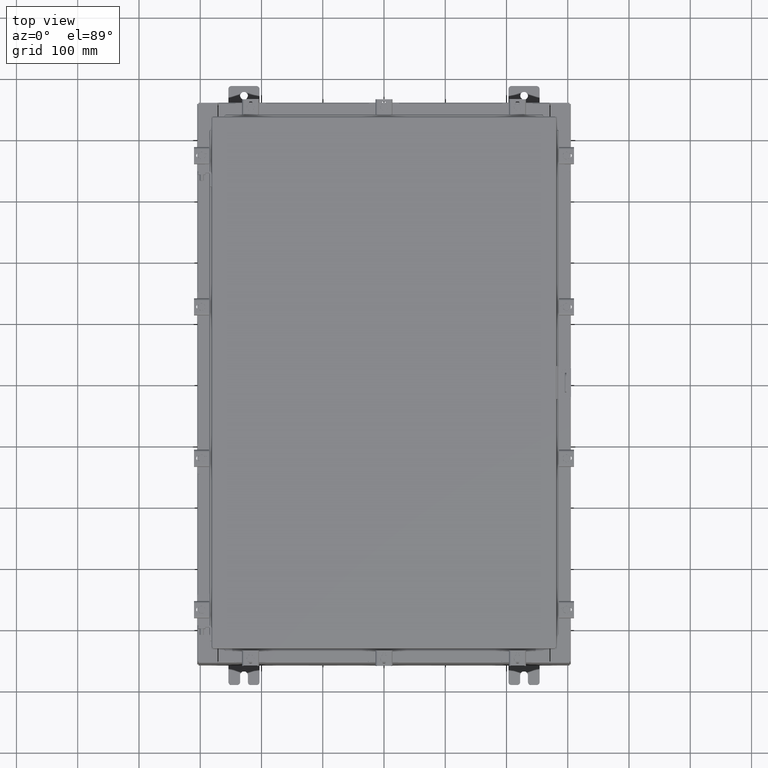
[diagram: clean part render]
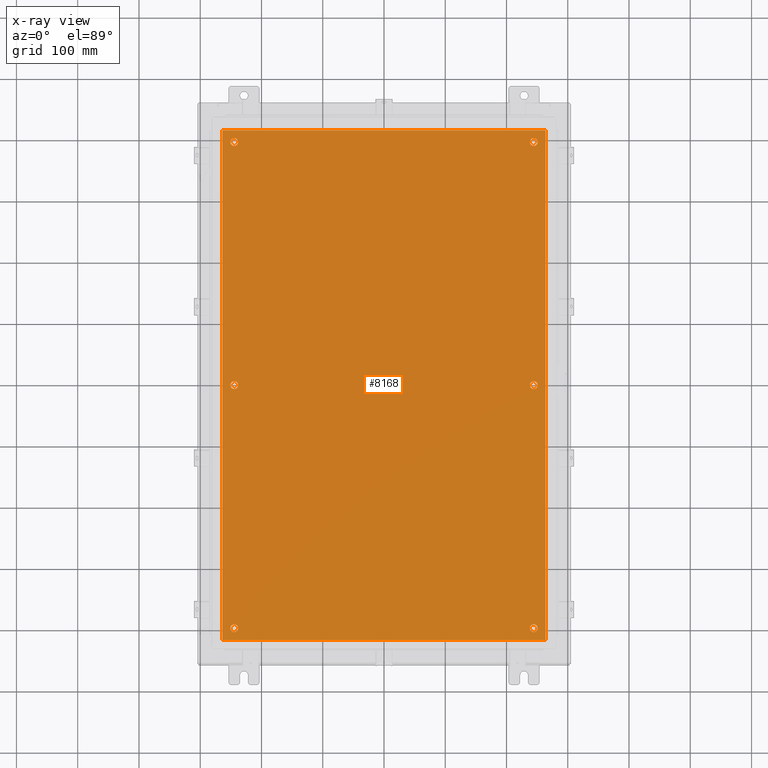
[diagram: x-ray — body ghosted, one internal face saturated and labeled with its STEP entity id]
A machine part, top view, then the same camera in x-ray: the body is ghosted and one INTERNAL B-rep face — a face not visible from any outside direction — is saturated and labeled: STEP entity #8168.
In plain terms, the highlighted planar face has unit normal (0, 0, -1).
Its self-contained STEP definition (entity closure, byte-faithful):
#156 = ORIENTED_EDGE ( 'NONE', *, *, #4316, .T. ) ;
#210 = CARTESIAN_POINT ( 'NONE',  ( 9.375000000000007100, 2.650915570591087300E-015, -0.1039999999999999800 ) ) ;
#275 = DIRECTION ( 'NONE',  ( -1.000000000000000000, 0.0000000000000000000, 0.0000000000000000000 ) ) ;
#322 = VERTEX_POINT ( 'NONE', #10211 ) ;
#494 = EDGE_LOOP ( 'NONE', ( #17899, #1867, #13667, #22196 ) ) ;
#1092 = LINE ( 'NONE', #8344, #19752 ) ;
#1322 = DIRECTION ( 'NONE',  ( -0.0000000000000000000, -0.0000000000000000000, 1.000000000000000000 ) ) ;
#1373 = DIRECTION ( 'NONE',  ( -0.0000000000000000000, -0.0000000000000000000, 1.000000000000000000 ) ) ;
#1379 = VERTEX_POINT ( 'NONE', #18771 ) ;
#1395 = CARTESIAN_POINT ( 'NONE',  ( 9.375000000000007100, 15.62500000000000200, -0.1039999999999999800 ) ) ;
#1676 = AXIS2_PLACEMENT_3D ( 'NONE', #3333, #16022, #5177 ) ;
#1867 = ORIENTED_EDGE ( 'NONE', *, *, #13534, .F. ) ;
#2170 = CARTESIAN_POINT ( 'NONE',  ( 9.375000000000007100, -15.62500000000000200, -0.1039999999999999800 ) ) ;
#2249 = VERTEX_POINT ( 'NONE', #8192 ) ;
#2430 = VERTEX_POINT ( 'NONE', #14110 ) ;
#2886 = DIRECTION ( 'NONE',  ( -0.0000000000000000000, -0.0000000000000000000, 1.000000000000000000 ) ) ;
#3333 = CARTESIAN_POINT ( 'NONE',  ( 9.625000000000007100, -15.62500000000000200, -0.1039999999999999800 ) ) ;
#3426 = CIRCLE ( 'NONE', #14259, 0.2499999999999998100 ) ;
#3500 = DIRECTION ( 'NONE',  ( -0.0000000000000000000, -0.0000000000000000000, 1.000000000000000000 ) ) ;
#3927 = CARTESIAN_POINT ( 'NONE',  ( -10.38300000000000100, -16.38299999999999600, -0.1040000000000009100 ) ) ;
#3953 = DIRECTION ( 'NONE',  ( 0.0000000000000000000, 0.0000000000000000000, -1.000000000000000000 ) ) ;
#3954 = EDGE_CURVE ( 'NONE', #10959, #22600, #12469, .T. ) ;
#3961 = VERTEX_POINT ( 'NONE', #6683 ) ;
#4088 = EDGE_LOOP ( 'NONE', ( #10362, #11519 ) ) ;
#4153 = FACE_BOUND ( 'NONE', #11224, .T. ) ;
#4229 = DIRECTION ( 'NONE',  ( -0.0000000000000000000, -0.0000000000000000000, 1.000000000000000000 ) ) ;
#4316 = EDGE_CURVE ( 'NONE', #15728, #5089, #15278, .T. ) ;
#4533 = CARTESIAN_POINT ( 'NONE',  ( -9.625000000000005300, 2.628543122537473900E-016, -0.1039999999999999800 ) ) ;
#4584 = CARTESIAN_POINT ( 'NONE',  ( 9.625000000000007100, 2.620299400612403500E-015, -0.1039999999999999800 ) ) ;
#4733 = FACE_BOUND ( 'NONE', #19204, .T. ) ;
#4913 = CARTESIAN_POINT ( 'NONE',  ( -10.50000000000000200, -16.38299999999999600, -0.1040000000000009100 ) ) ;
#5029 = CIRCLE ( 'NONE', #22622, 0.2499999999999998100 ) ;
#5044 = DIRECTION ( 'NONE',  ( -0.0000000000000000000, -0.0000000000000000000, 1.000000000000000000 ) ) ;
#5088 = DIRECTION ( 'NONE',  ( -0.0000000000000000000, -0.0000000000000000000, 1.000000000000000000 ) ) ;
#5089 = VERTEX_POINT ( 'NONE', #12742 ) ;
#5177 = DIRECTION ( 'NONE',  ( -1.000000000000000000, 0.0000000000000000000, 0.0000000000000000000 ) ) ;
#5191 = CIRCLE ( 'NONE', #14369, 0.2499999999999998100 ) ;
#5281 = EDGE_CURVE ( 'NONE', #11200, #322, #23216, .T. ) ;
#5332 = DIRECTION ( 'NONE',  ( 0.0000000000000000000, 1.000000000000000000, 0.0000000000000000000 ) ) ;
#5513 = AXIS2_PLACEMENT_3D ( 'NONE', #13744, #2886, #15577 ) ;
#5650 = CARTESIAN_POINT ( 'NONE',  ( -10.38300000000000100, 16.38300000000000300, -0.1039999999999987600 ) ) ;
#5959 = ORIENTED_EDGE ( 'NONE', *, *, #16565, .T. ) ;
#6203 = AXIS2_PLACEMENT_3D ( 'NONE', #6523, #19170, #8341 ) ;
#6348 = DIRECTION ( 'NONE',  ( -1.000000000000000000, 0.0000000000000000000, 0.0000000000000000000 ) ) ;
#6389 = DIRECTION ( 'NONE',  ( -1.000000000000000000, 0.0000000000000000000, 0.0000000000000000000 ) ) ;
#6523 = CARTESIAN_POINT ( 'NONE',  ( -9.625000000000007100, 15.62500000000000200, -0.1039999999999999800 ) ) ;
#6667 = CIRCLE ( 'NONE', #7827, 0.2499999999999998100 ) ;
#6683 = CARTESIAN_POINT ( 'NONE',  ( 9.875000000000007100, -15.62500000000000200, -0.1039999999999999800 ) ) ;
#6714 = DIRECTION ( 'NONE',  ( 1.000000000000000000, -0.0000000000000000000, -0.0000000000000000000 ) ) ;
#6863 = EDGE_CURVE ( 'NONE', #1379, #2430, #8189, .T. ) ;
#6935 = DIRECTION ( 'NONE',  ( 0.0000000000000000000, -1.000000000000000000, 0.0000000000000000000 ) ) ;
#7076 = VERTEX_POINT ( 'NONE', #2170 ) ;
#7827 = AXIS2_PLACEMENT_3D ( 'NONE', #4584, #17232, #6389 ) ;
#8168 = ADVANCED_FACE ( 'NONE', ( #22817, #18610, #4153, #4733, #18046, #13228, #8408 ), #13004, .T. ) ;
#8189 = CIRCLE ( 'NONE', #10528, 0.2500000000000008900 ) ;
#8192 = CARTESIAN_POINT ( 'NONE',  ( 10.38300000000000100, 16.38300000000000300, -0.1040000000000009100 ) ) ;
#8341 = DIRECTION ( 'NONE',  ( -1.000000000000000000, 0.0000000000000000000, 0.0000000000000000000 ) ) ;
#8344 = CARTESIAN_POINT ( 'NONE',  ( 10.50000000000000400, 16.38299999999999900, -0.1040000000000009100 ) ) ;
#8408 = FACE_OUTER_BOUND ( 'NONE', #494, .T. ) ;
#9220 = CARTESIAN_POINT ( 'NONE',  ( 9.875000000000007100, 15.62500000000000200, -0.1039999999999999800 ) ) ;
#9419 = VERTEX_POINT ( 'NONE', #3927 ) ;
#9514 = EDGE_LOOP ( 'NONE', ( #14986, #13858 ) ) ;
#10015 = EDGE_LOOP ( 'NONE', ( #13950, #5959 ) ) ;
#10211 = CARTESIAN_POINT ( 'NONE',  ( -9.875000000000007100, 15.62500000000000200, -0.1039999999999999800 ) ) ;
#10294 = VERTEX_POINT ( 'NONE', #14717 ) ;
#10362 = ORIENTED_EDGE ( 'NONE', *, *, #5281, .T. ) ;
#10446 = ORIENTED_EDGE ( 'NONE', *, *, #12202, .T. ) ;
#10528 = AXIS2_PLACEMENT_3D ( 'NONE', #14358, #3500, #16185 ) ;
#10959 = VERTEX_POINT ( 'NONE', #9220 ) ;
#11089 = DIRECTION ( 'NONE',  ( -0.0000000000000000000, -0.0000000000000000000, 1.000000000000000000 ) ) ;
#11139 = LINE ( 'NONE', #17995, #20747 ) ;
#11200 = VERTEX_POINT ( 'NONE', #15243 ) ;
#11224 = EDGE_LOOP ( 'NONE', ( #14141, #14391 ) ) ;
#11395 = AXIS2_PLACEMENT_3D ( 'NONE', #12180, #1322, #13980 ) ;
#11519 = ORIENTED_EDGE ( 'NONE', *, *, #19022, .T. ) ;
#11587 = EDGE_CURVE ( 'NONE', #10294, #2249, #11139, .T. ) ;
#12167 = VECTOR ( 'NONE', #6935, 39.37007874015748100 ) ;
#12180 = CARTESIAN_POINT ( 'NONE',  ( 9.625000000000007100, 15.62500000000000200, -0.1039999999999999800 ) ) ;
#12202 = EDGE_CURVE ( 'NONE', #3961, #7076, #15382, .T. ) ;
#12240 = CARTESIAN_POINT ( 'NONE',  ( 9.625000000000007100, 2.620299400612403500E-015, -0.1039999999999999800 ) ) ;
#12469 = CIRCLE ( 'NONE', #11395, 0.2499999999999998100 ) ;
#12621 = EDGE_CURVE ( 'NONE', #5089, #15728, #22961, .T. ) ;
#12742 = CARTESIAN_POINT ( 'NONE',  ( -9.375000000000005300, 2.628543122537473900E-016, -0.1039999999999999800 ) ) ;
#13004 = PLANE ( 'NONE',  #20829 ) ;
#13228 = FACE_BOUND ( 'NONE', #4088, .T. ) ;
#13534 = EDGE_CURVE ( 'NONE', #14496, #9419, #21748, .T. ) ;
#13667 = ORIENTED_EDGE ( 'NONE', *, *, #15232, .F. ) ;
#13744 = CARTESIAN_POINT ( 'NONE',  ( -9.625000000000007100, 15.62500000000000200, -0.1039999999999999800 ) ) ;
#13858 = ORIENTED_EDGE ( 'NONE', *, *, #18552, .T. ) ;
#13950 = ORIENTED_EDGE ( 'NONE', *, *, #19723, .T. ) ;
#13977 = ORIENTED_EDGE ( 'NONE', *, *, #12621, .T. ) ;
#13980 = DIRECTION ( 'NONE',  ( -1.000000000000000000, 0.0000000000000000000, 0.0000000000000000000 ) ) ;
#14034 = DIRECTION ( 'NONE',  ( -1.000000000000000000, 0.0000000000000000000, 0.0000000000000000000 ) ) ;
#14110 = CARTESIAN_POINT ( 'NONE',  ( -9.375000000000007100, -15.62500000000000200, -0.1039999999999999800 ) ) ;
#14141 = ORIENTED_EDGE ( 'NONE', *, *, #15041, .T. ) ;
#14259 = AXIS2_PLACEMENT_3D ( 'NONE', #12240, #1373, #14034 ) ;
#14358 = CARTESIAN_POINT ( 'NONE',  ( -9.625000000000007100, -15.62500000000000200, -0.1039999999999999800 ) ) ;
#14369 = AXIS2_PLACEMENT_3D ( 'NONE', #15893, #5044, #17706 ) ;
#14391 = ORIENTED_EDGE ( 'NONE', *, *, #6863, .T. ) ;
#14494 = VERTEX_POINT ( 'NONE', #18312 ) ;
#14496 = VERTEX_POINT ( 'NONE', #5650 ) ;
#14569 = AXIS2_PLACEMENT_3D ( 'NONE', #4533, #17182, #6348 ) ;
#14717 = CARTESIAN_POINT ( 'NONE',  ( 10.38300000000000100, -16.38299999999999600, -0.1040000000000009100 ) ) ;
#14812 = CARTESIAN_POINT ( 'NONE',  ( 0.0000000000000000000, 0.0000000000000000000, -0.1039999999999999800 ) ) ;
#14986 = ORIENTED_EDGE ( 'NONE', *, *, #3954, .T. ) ;
#15041 = EDGE_CURVE ( 'NONE', #2430, #1379, #20042, .T. ) ;
#15094 = CARTESIAN_POINT ( 'NONE',  ( -9.625000000000007100, -15.62500000000000200, -0.1039999999999999800 ) ) ;
#15136 = CARTESIAN_POINT ( 'NONE',  ( -9.875000000000005300, 2.934704822324310800E-016, -0.1039999999999999800 ) ) ;
#15232 = EDGE_CURVE ( 'NONE', #2249, #14496, #1092, .T. ) ;
#15243 = CARTESIAN_POINT ( 'NONE',  ( -9.375000000000007100, 15.62500000000000200, -0.1039999999999999800 ) ) ;
#15278 = CIRCLE ( 'NONE', #19430, 0.2500000000000008900 ) ;
#15369 = CIRCLE ( 'NONE', #6203, 0.2500000000000008900 ) ;
#15382 = CIRCLE ( 'NONE', #1676, 0.2499999999999998100 ) ;
#15540 = EDGE_CURVE ( 'NONE', #7076, #3961, #5029, .T. ) ;
#15577 = DIRECTION ( 'NONE',  ( -1.000000000000000000, 0.0000000000000000000, 0.0000000000000000000 ) ) ;
#15728 = VERTEX_POINT ( 'NONE', #15136 ) ;
#15893 = CARTESIAN_POINT ( 'NONE',  ( 9.625000000000007100, 15.62500000000000200, -0.1039999999999999800 ) ) ;
#15925 = CARTESIAN_POINT ( 'NONE',  ( -9.625000000000005300, 2.628543122537473900E-016, -0.1039999999999999800 ) ) ;
#15978 = EDGE_CURVE ( 'NONE', #9419, #10294, #16906, .T. ) ;
#16022 = DIRECTION ( 'NONE',  ( -0.0000000000000000000, -0.0000000000000000000, 1.000000000000000000 ) ) ;
#16185 = DIRECTION ( 'NONE',  ( -1.000000000000000000, 0.0000000000000000000, 0.0000000000000000000 ) ) ;
#16342 = VECTOR ( 'NONE', #6714, 39.37007874015748100 ) ;
#16565 = EDGE_CURVE ( 'NONE', #22813, #14494, #6667, .T. ) ;
#16635 = DIRECTION ( 'NONE',  ( -1.000000000000000000, 0.0000000000000000000, -0.0000000000000000000 ) ) ;
#16898 = DIRECTION ( 'NONE',  ( -1.000000000000000000, 0.0000000000000000000, 0.0000000000000000000 ) ) ;
#16906 = LINE ( 'NONE', #4913, #16342 ) ;
#17182 = DIRECTION ( 'NONE',  ( -0.0000000000000000000, -0.0000000000000000000, 1.000000000000000000 ) ) ;
#17232 = DIRECTION ( 'NONE',  ( -0.0000000000000000000, -0.0000000000000000000, 1.000000000000000000 ) ) ;
#17706 = DIRECTION ( 'NONE',  ( -1.000000000000000000, 0.0000000000000000000, 0.0000000000000000000 ) ) ;
#17738 = DIRECTION ( 'NONE',  ( -1.000000000000000000, 0.0000000000000000000, 0.0000000000000000000 ) ) ;
#17785 = ORIENTED_EDGE ( 'NONE', *, *, #15540, .T. ) ;
#17899 = ORIENTED_EDGE ( 'NONE', *, *, #15978, .F. ) ;
#17995 = CARTESIAN_POINT ( 'NONE',  ( 10.38300000000000100, -16.38299999999999600, -0.1040000000000009100 ) ) ;
#18046 = FACE_BOUND ( 'NONE', #9514, .T. ) ;
#18312 = CARTESIAN_POINT ( 'NONE',  ( 9.875000000000007100, 2.620299400612403500E-015, -0.1039999999999999800 ) ) ;
#18552 = EDGE_CURVE ( 'NONE', #22600, #10959, #5191, .T. ) ;
#18610 = FACE_BOUND ( 'NONE', #22508, .T. ) ;
#18771 = CARTESIAN_POINT ( 'NONE',  ( -9.875000000000007100, -15.62500000000000200, -0.1039999999999999800 ) ) ;
#19022 = EDGE_CURVE ( 'NONE', #322, #11200, #15369, .T. ) ;
#19170 = DIRECTION ( 'NONE',  ( -0.0000000000000000000, -0.0000000000000000000, 1.000000000000000000 ) ) ;
#19204 = EDGE_LOOP ( 'NONE', ( #10446, #17785 ) ) ;
#19430 = AXIS2_PLACEMENT_3D ( 'NONE', #15925, #5088, #17738 ) ;
#19723 = EDGE_CURVE ( 'NONE', #14494, #22813, #3426, .T. ) ;
#19752 = VECTOR ( 'NONE', #20974, 39.37007874015748100 ) ;
#19900 = AXIS2_PLACEMENT_3D ( 'NONE', #15094, #4229, #16898 ) ;
#20042 = CIRCLE ( 'NONE', #19900, 0.2500000000000008900 ) ;
#20747 = VECTOR ( 'NONE', #5332, 39.37007874015748100 ) ;
#20829 = AXIS2_PLACEMENT_3D ( 'NONE', #14812, #3953, #16635 ) ;
#20974 = DIRECTION ( 'NONE',  ( -1.000000000000000000, -0.0000000000000000000, -0.0000000000000000000 ) ) ;
#21311 = CARTESIAN_POINT ( 'NONE',  ( -10.38300000000000100, 16.38300000000000300, -0.1039999999999987600 ) ) ;
#21748 = LINE ( 'NONE', #21311, #12167 ) ;
#21918 = CARTESIAN_POINT ( 'NONE',  ( 9.625000000000007100, -15.62500000000000200, -0.1039999999999999800 ) ) ;
#22196 = ORIENTED_EDGE ( 'NONE', *, *, #11587, .F. ) ;
#22508 = EDGE_LOOP ( 'NONE', ( #13977, #156 ) ) ;
#22600 = VERTEX_POINT ( 'NONE', #1395 ) ;
#22622 = AXIS2_PLACEMENT_3D ( 'NONE', #21918, #11089, #275 ) ;
#22813 = VERTEX_POINT ( 'NONE', #210 ) ;
#22817 = FACE_BOUND ( 'NONE', #10015, .T. ) ;
#22961 = CIRCLE ( 'NONE', #14569, 0.2500000000000008900 ) ;
#23216 = CIRCLE ( 'NONE', #5513, 0.2500000000000008900 ) ;